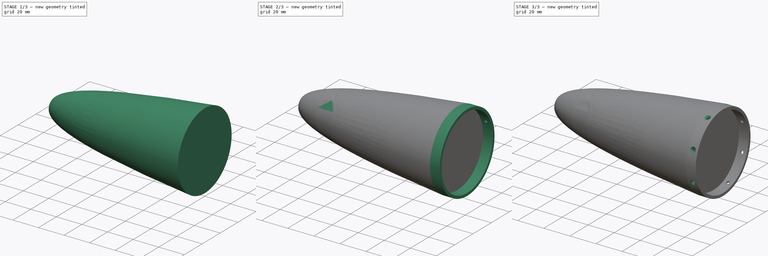
[diagram: build sequence overview — one tinted view per stage of 3, left to right]
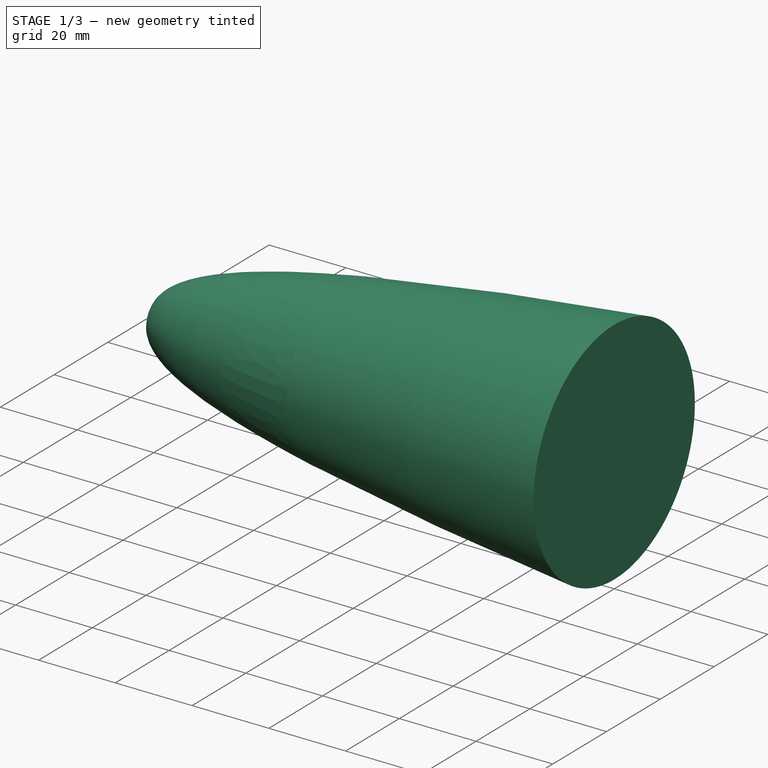
[diagram: stage 1 of 3 — iso view after this stage's code; geometry added in this stage tinted green]
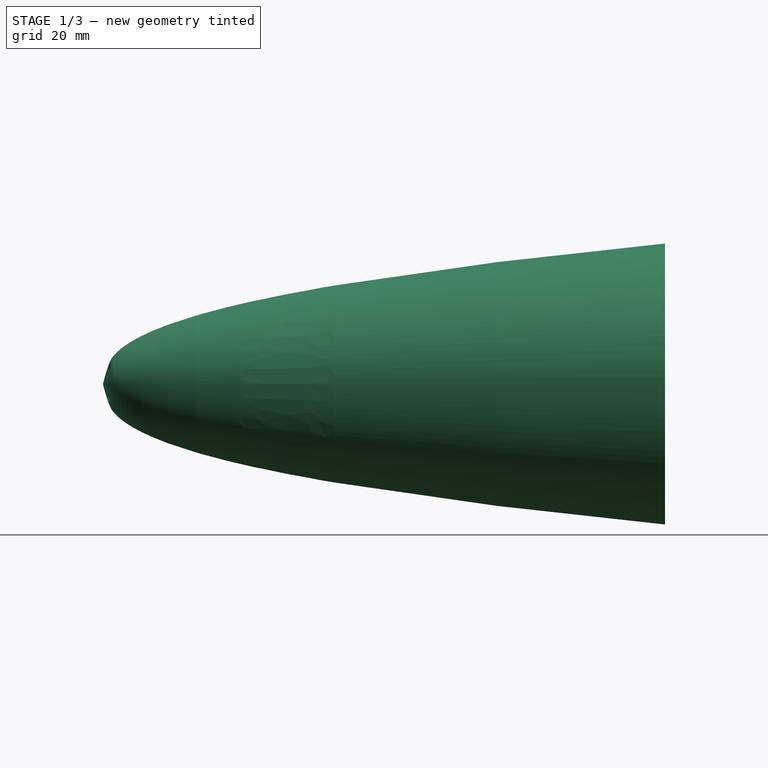
[diagram: stage 1 of 3 — front view after this stage's code; geometry added in this stage tinted green]
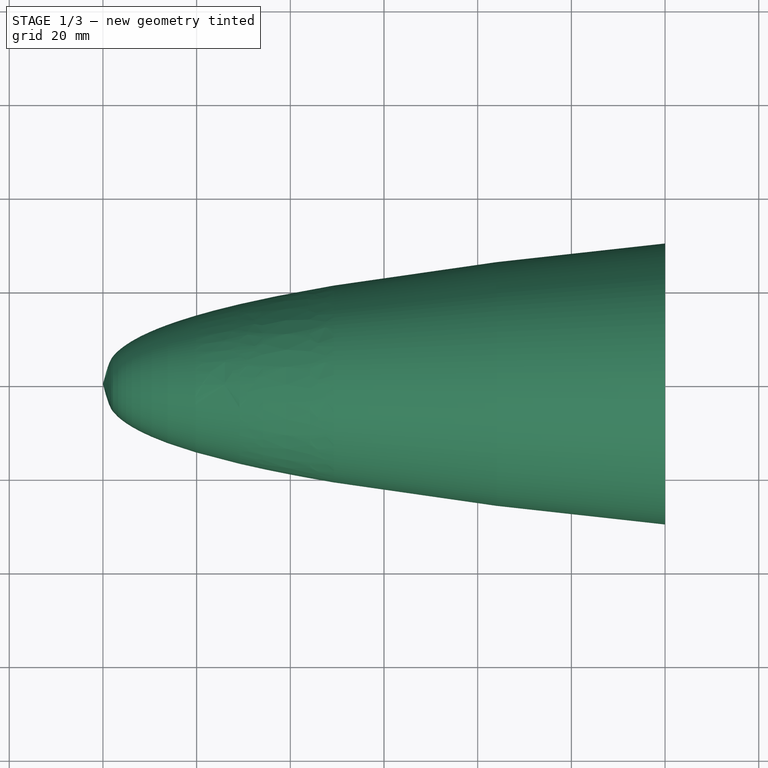
[diagram: stage 1 of 3 — top view after this stage's code; geometry added in this stage tinted green]
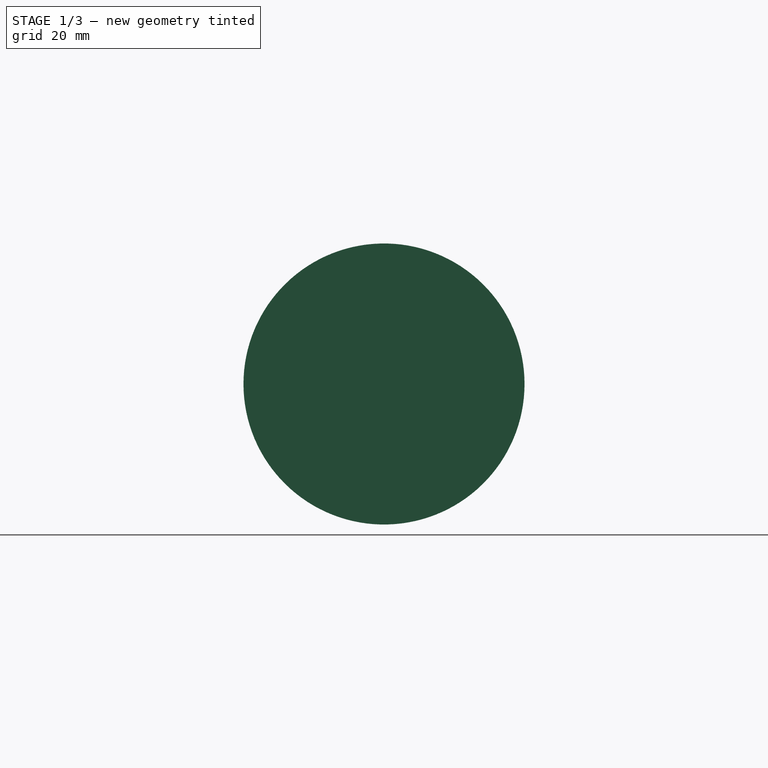
[diagram: stage 1 of 3 — right view after this stage's code; geometry added in this stage tinted green]
FCSTD DOCUMENT  (FreeCAD 1.0R39319 (Git))
Label: nose_cone
License: All rights reserved
objects: Sketcher::SketchObject×4, PartDesign::Plane×2, PartDesign::Pocket×2, Part::FeaturePython×1, PartDesign::FeatureBase×1, PartDesign::Pad×1, PartDesign::Chamfer×1, PartDesign::PolarPattern×1, PartDesign::Body×1
note: 28 computed .brp shape members not serialized (recipe doc carries the construction recipe); baked Part::Feature solids carry a one-line shape summary decoded from their .brp

FEATURE [Part::FeaturePython] NoseCone  # WARN: FeaturePython — macro-defined, semantics opaque (R4)
  AngleOffset = 0
  AutoDiameter = false
  AxialOffset = 0
  BluntedDiameter = 5
  CapBarWidth = 3
  CapStyle = 0
  Coefficient = 0.4
  Diameter = 60
  Length = 120
  LocationReference = 2
  NoseStyle = 0
  NoseType = 10
  OgiveDiameter = 120
  RadialOffset = 0
  RadialReference = 0
  Resolution = 100
  Shoulder = false
  ShoulderAutoDiameter = false
  ShoulderDiameter = 23.62
  ShoulderLength = 24.79
  ShoulderThickness = 1.57
  Thickness = 1.57
FEATURE [PartDesign::FeatureBase] BaseFeature
  BaseFeature = -> NoseCone
  Suppressed = false
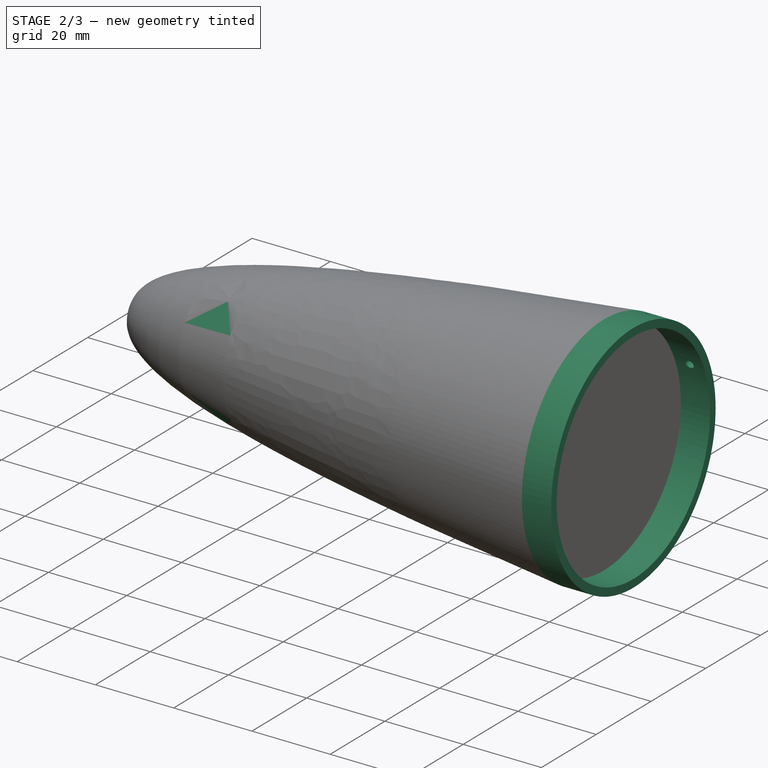
[diagram: stage 2 of 3 — iso view after this stage's code; geometry added in this stage tinted green]
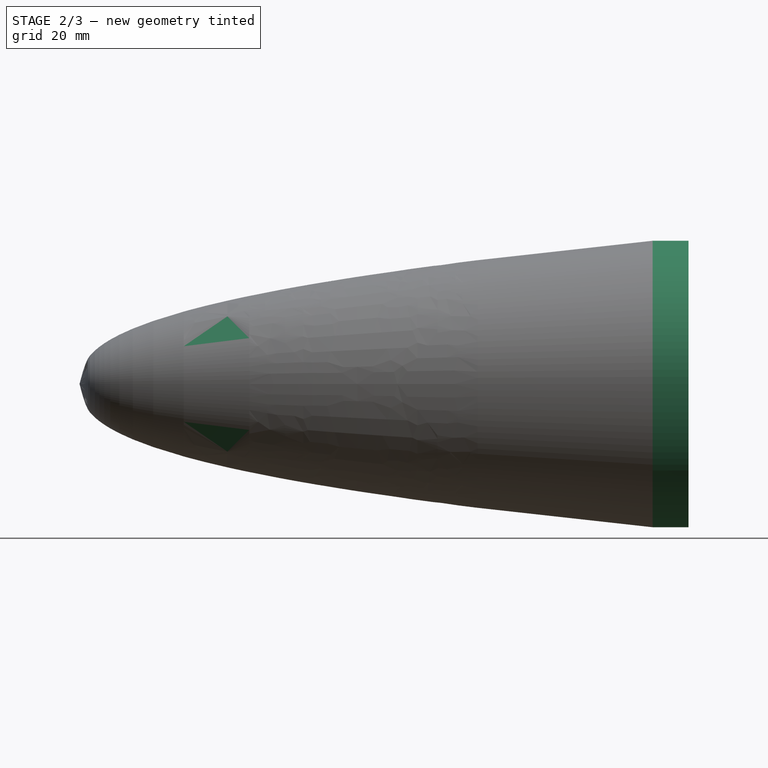
[diagram: stage 2 of 3 — front view after this stage's code; geometry added in this stage tinted green]
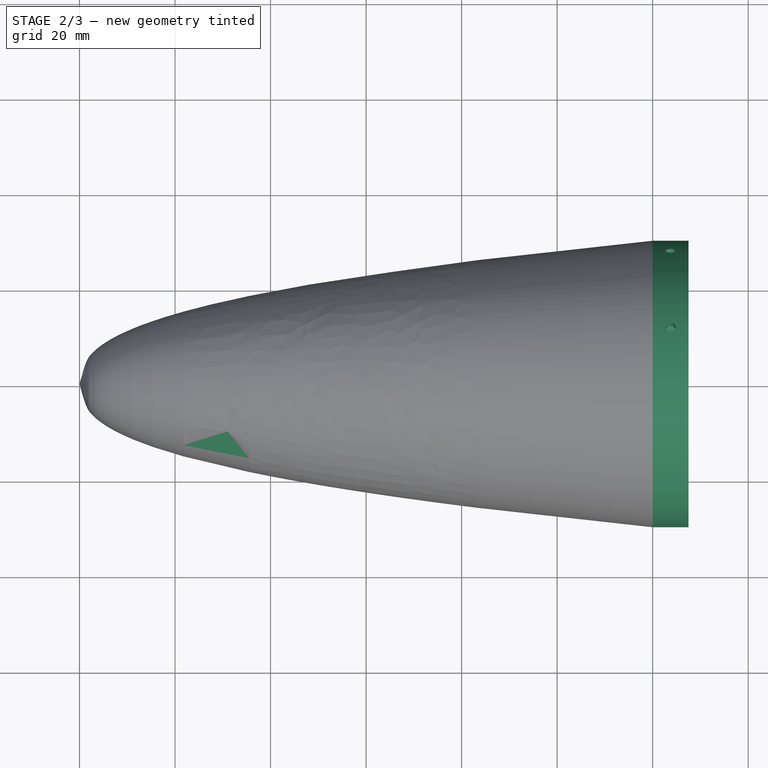
[diagram: stage 2 of 3 — top view after this stage's code; geometry added in this stage tinted green]
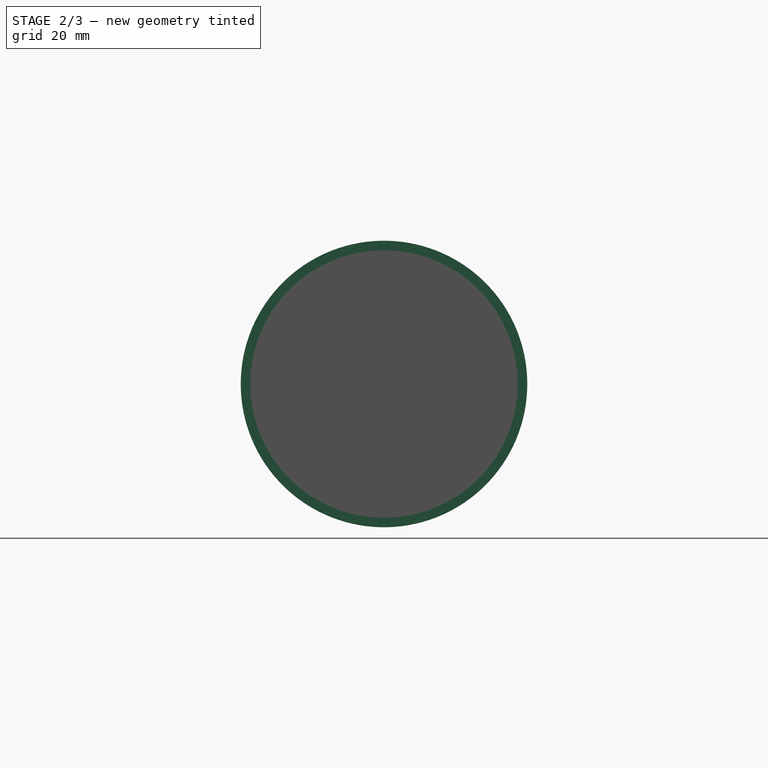
[diagram: stage 2 of 3 — right view after this stage's code; geometry added in this stage tinted green]
FEATURE [Sketcher::SketchObject] Sketch
  ArcFitTolerance = 1e-06
  AttachmentSupport = -> [BaseFeature]
  ExternalGeometry = -> [BaseFeature]
  FullyConstrained = true
  MakeInternals = false
  MapMode = 5
  Placement = pos=(120,0,0) rot=(0.57735,0.57735,0.57735;2.0944rad)
  sketch-geometry (2):
    g0: Circle CenterX=0 CenterY=0 CenterZ=0 NormalX=0 NormalY=0 NormalZ=1 AngleXU=0 Radius=30
    g1: Circle CenterX=0 CenterY=0 CenterZ=0 NormalX=0 NormalY=0 NormalZ=1 AngleXU=0 Radius=28
  constraints (4):
    c: Coincident(g0,g-1)
    c: Tangent(g0,g-3)
    c: Diameter(g1) = 56
    c: Coincident(g1,g0)
FEATURE [PartDesign::Pad] Pad
  BaseFeature = -> BaseFeature
  Direction = (1,0,0)
  Length = 7.5
  Length2 = 10
  Profile = -> Sketch
  ReferenceAxis = -> Sketch [N_Axis]
  Refine = true
  Suppressed = false
  Type = 0
FEATURE [Sketcher::SketchObject] Sketch001
  ArcFitTolerance = 1e-06
  AttachmentSupport = -> [Pad]
  ExternalGeometry = -> [Pad]
  FullyConstrained = true
  MakeInternals = false
  MapMode = 5
  Placement = pos=(127.5,0,0) rot=(0.57735,0.57735,0.57735;2.0944rad)
  sketch-geometry (3):
    g0: LineSegment [constr] StartX=0 StartY=0 StartZ=0 EndX=21.2132 EndY=21.2132 EndZ=0
    g1: LineSegment StartX=0 StartY=0 StartZ=0 EndX=11.4805 EndY=27.7164 EndZ=0
    g2: LineSegment StartX=0 StartY=0 StartZ=0 EndX=27.7164 EndY=11.4805 EndZ=0
  constraints (9):
    c: Coincident(g0,g-1)
    c: PointOnObject(g0,g-3)
    c: Coincident(g1,g0)
    c: PointOnObject(g1,g-3)
    c: Coincident(g2,g0)
    c: PointOnObject(g2,g-3)
    c: Angle(g-1,g0) = 0.785398
    c: Angle(g2,g1) = 0.785398
    c: Angle(g0,g1) = 0.392699
FEATURE [PartDesign::Plane] DatumPlane
  AttachmentSupport = -> [Sketch001]
  Length = 174.344
  MapMode = 7
  Placement = pos=(127.5,27.7164,11.4805) rot=(1,0,0;1.96349rad)
  ResizeMode = 0
  Width = 100.066
FEATURE [PartDesign::Plane] DatumPlane001
  AttachmentSupport = -> [Sketch001]
  Length = 174.336
  MapMode = 7
  Placement = pos=(127.5,11.4805,27.7164) rot=(1,0,0;2.74889rad)
  ResizeMode = 0
  Width = 100.004
FEATURE [Sketcher::SketchObject] Sketch002
  ArcFitTolerance = 1e-06
  AttachmentSupport = -> [DatumPlane]
  FullyConstrained = true
  MakeInternals = false
  MapMode = 5
  Placement = pos=(127.5,27.7164,11.4805) rot=(1,0,0;1.96349rad)
  sketch-geometry (1):
    g0: Circle CenterX=-3.75 CenterY=0 CenterZ=0 NormalX=0 NormalY=0 NormalZ=1 AngleXU=0 Radius=1.05
  constraints (3):
    c: Diameter(g0) = 2.1
    c: PointOnObject(g0,g-1)
    c: Distance(g0,g-1) = 3.75
FEATURE [Sketcher::SketchObject] Sketch003
  ArcFitTolerance = 1e-06
  AttachmentSupport = -> [DatumPlane001]
  FullyConstrained = true
  MakeInternals = false
  MapMode = 5
  Placement = pos=(127.5,11.4805,27.7164) rot=(1,0,0;2.74889rad)
  sketch-geometry (1):
    g0: Circle CenterX=-3.75 CenterY=0 CenterZ=0 NormalX=0 NormalY=0 NormalZ=1 AngleXU=0 Radius=1.05
  constraints (3):
    c: Diameter(g0) = 2.1
    c: PointOnObject(g0,g-1)
    c: Distance(g0,g-1) = 3.75
FEATURE [PartDesign::Pocket] Pocket
  BaseFeature = -> Pad
  Direction = (0,0.92388,0.382683)
  Length = 4
  Length2 = 5
  Profile = -> Sketch002
  ReferenceAxis = -> Sketch002 [N_Axis]
  Refine = true
  Reversed = true
  Suppressed = false
  Type = 0
FEATURE [PartDesign::Pocket] Pocket001
  BaseFeature = -> Pocket
  Direction = (0,0.382683,0.92388)
  Length = 4
  Length2 = 5
  Profile = -> Sketch003
  ReferenceAxis = -> Sketch003 [N_Axis]
  Refine = true
  Reversed = true
  Suppressed = false
  Type = 0
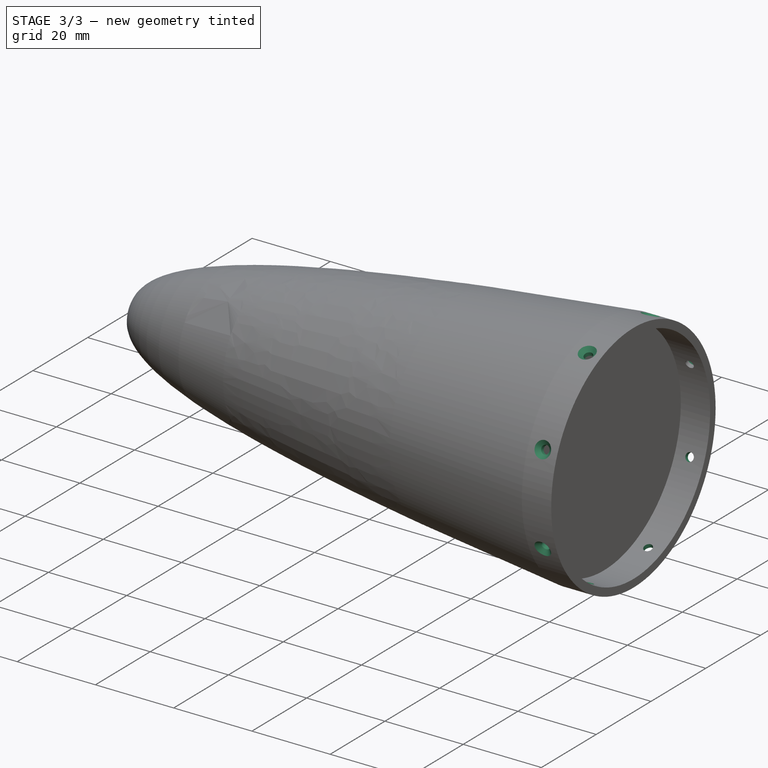
[diagram: stage 3 of 3 — iso view after this stage's code; geometry added in this stage tinted green]
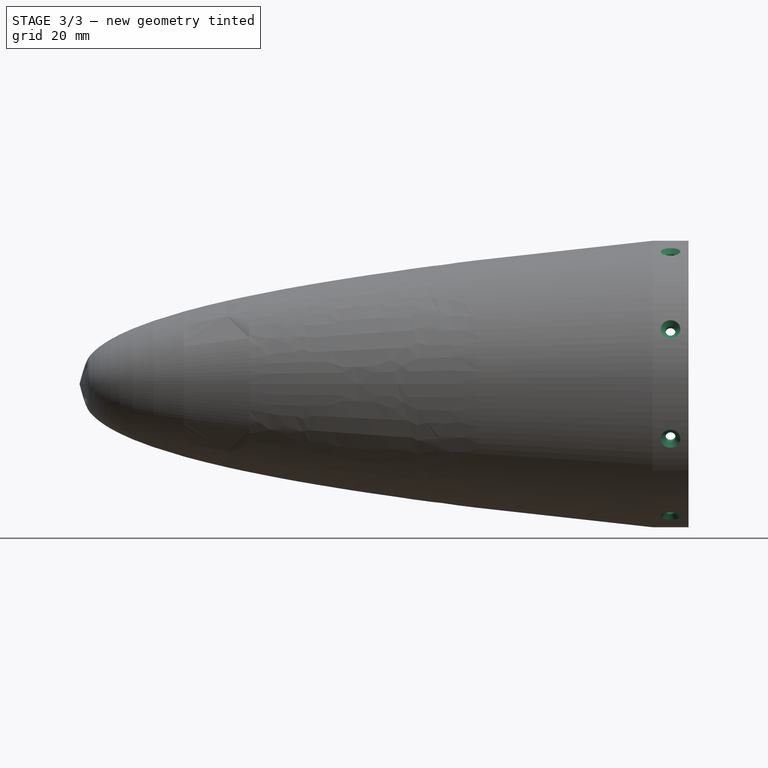
[diagram: stage 3 of 3 — front view after this stage's code; geometry added in this stage tinted green]
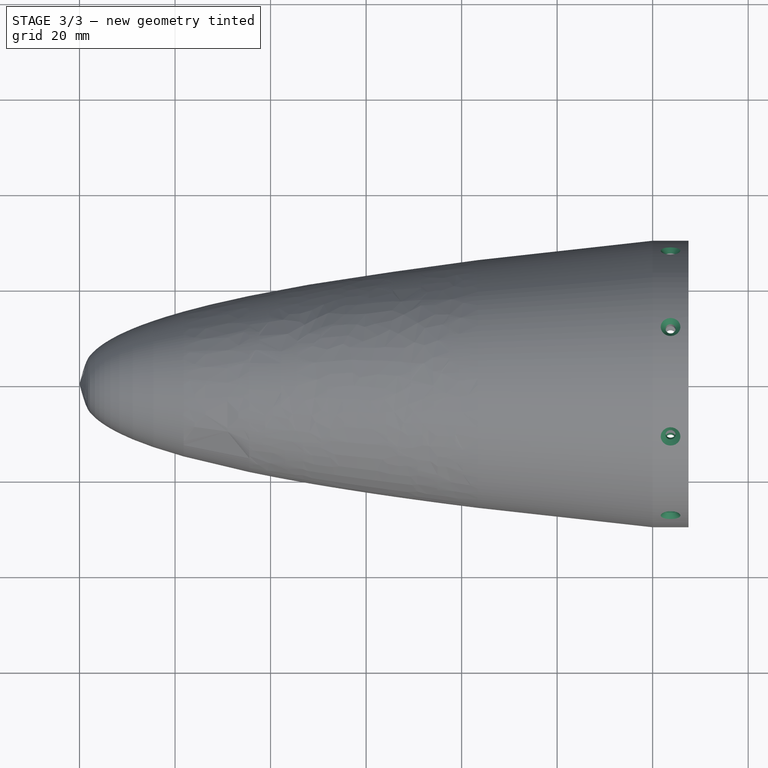
[diagram: stage 3 of 3 — top view after this stage's code; geometry added in this stage tinted green]
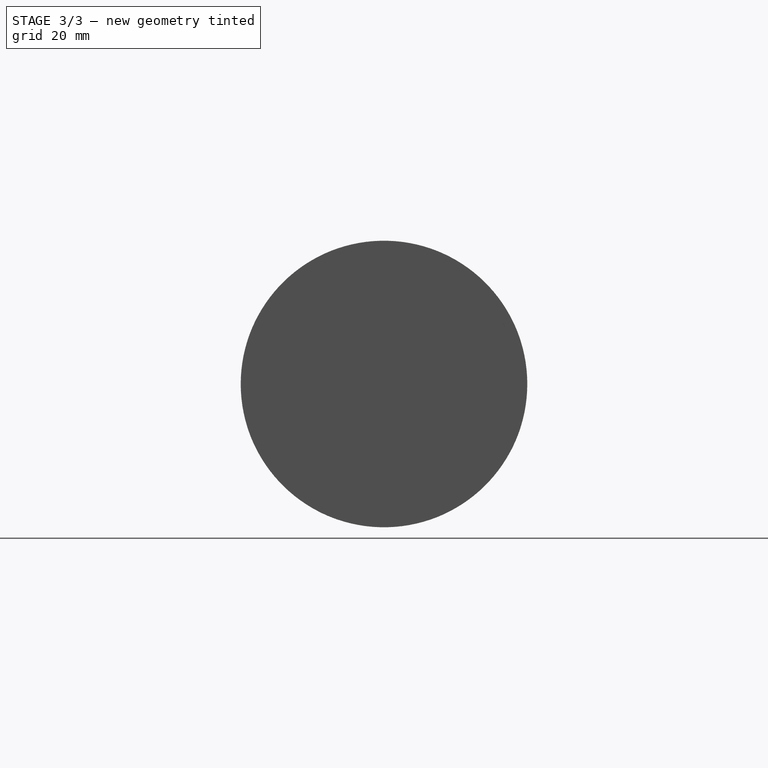
[diagram: stage 3 of 3 — right view after this stage's code; geometry added in this stage tinted green]
FEATURE [PartDesign::Chamfer] Chamfer
  Angle = 45
  Base = -> Pocket001 [Edge7,Edge6,Edge9,Edge8]
  BaseFeature = -> Pocket001
  ChamferType = 0
  FlipDirection = false
  Refine = true
  Size = 1
  Size2 = 1
  SupportTransform = false
  Suppressed = false
  UseAllEdges = false
FEATURE [PartDesign::PolarPattern] PolarPattern
  Angle = 360
  Axis = -> X_Axis
  BaseFeature = -> Chamfer
  Mode = 0
  Occurrences = 4
  Offset = 120
  Originals = -> [Pocket,Pocket001,Chamfer]
  Refine = true
  Suppressed = false
  TransformMode = 0
FEATURE [PartDesign::Body] Body
  AllowCompound = false
  BaseFeature = -> NoseCone
  Group = -> [BaseFeature,Sketch,Pad,Sketch001,DatumPlane,DatumPlane001,Sketch002,Sketch003,Pocket,Pocket001,Chamfer,PolarPattern]
  Origin = -> Origin
  Tip = -> PolarPattern
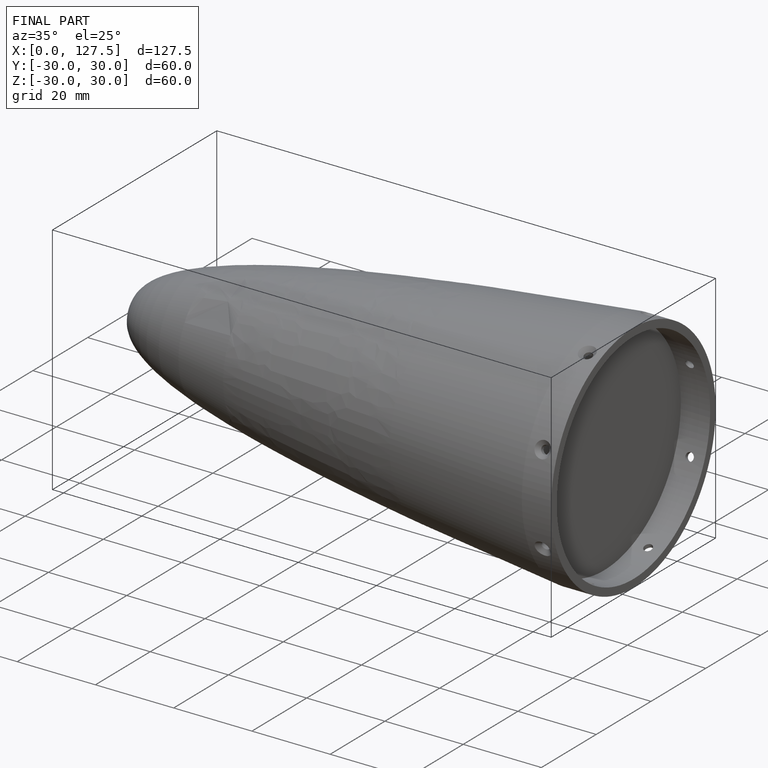
[diagram: finished part — iso view with bounding-box wireframe]
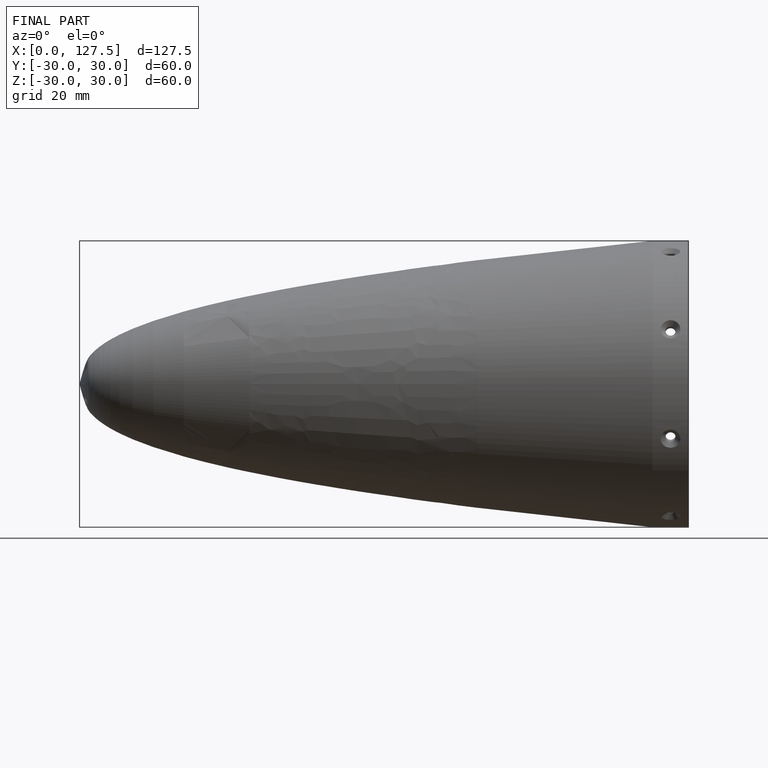
[diagram: finished part — front view with bounding-box wireframe]
